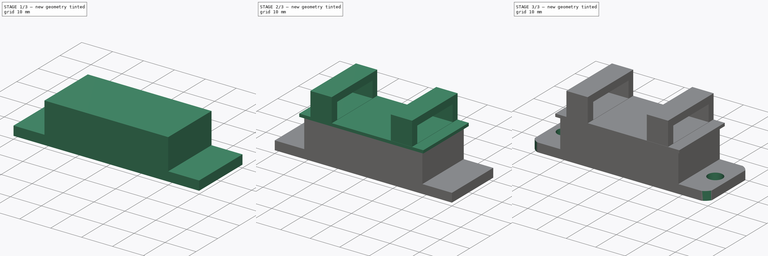
[diagram: build sequence overview — one tinted view per stage of 3, left to right]
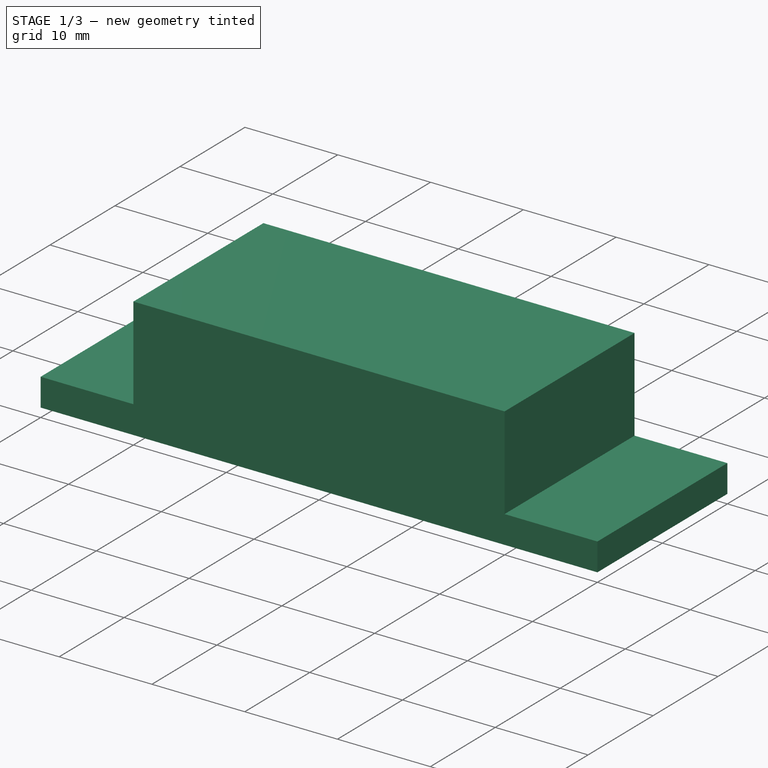
[diagram: stage 1 of 3 — iso view after this stage's code; geometry added in this stage tinted green]
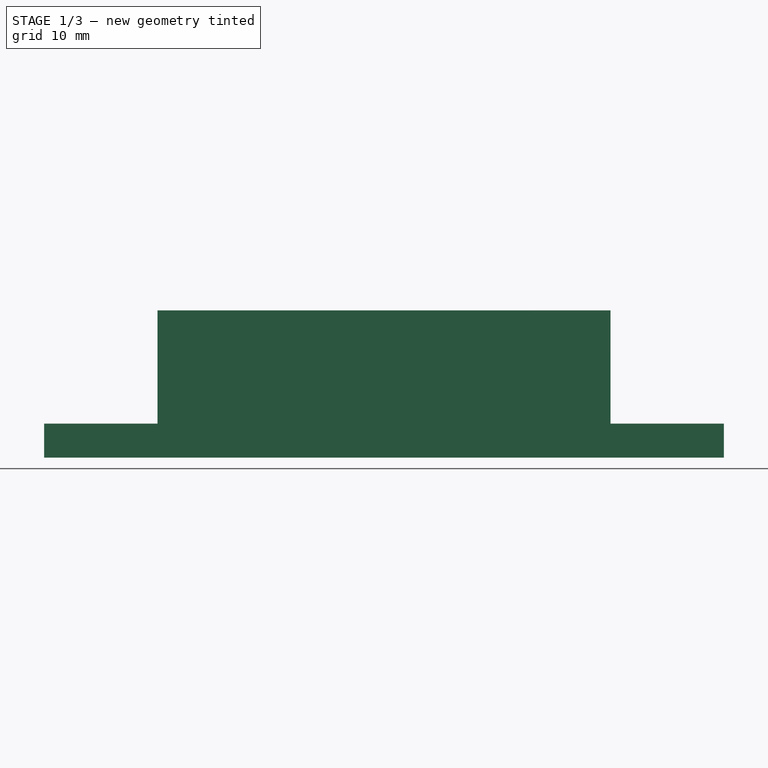
[diagram: stage 1 of 3 — front view after this stage's code; geometry added in this stage tinted green]
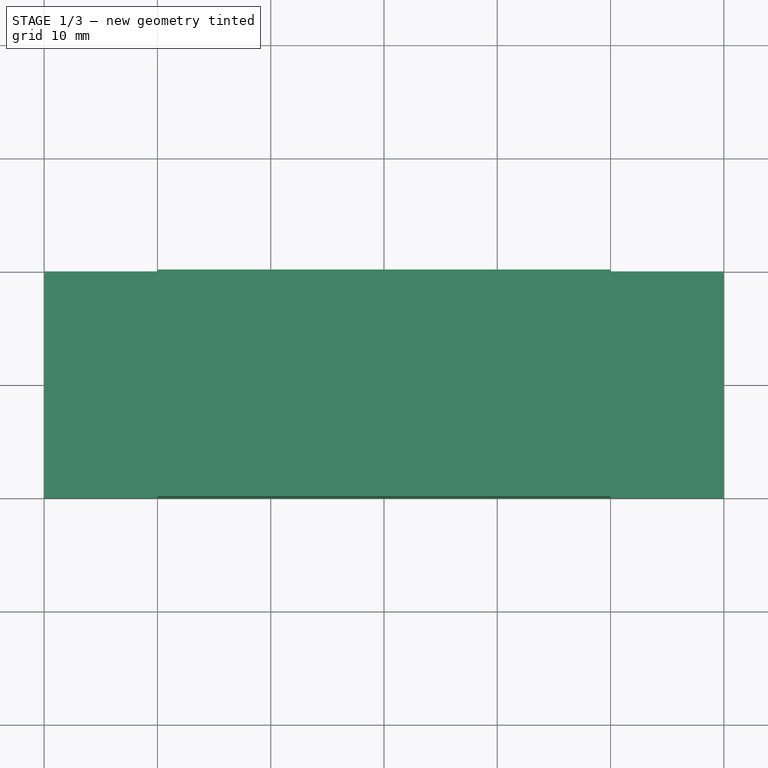
[diagram: stage 1 of 3 — top view after this stage's code; geometry added in this stage tinted green]
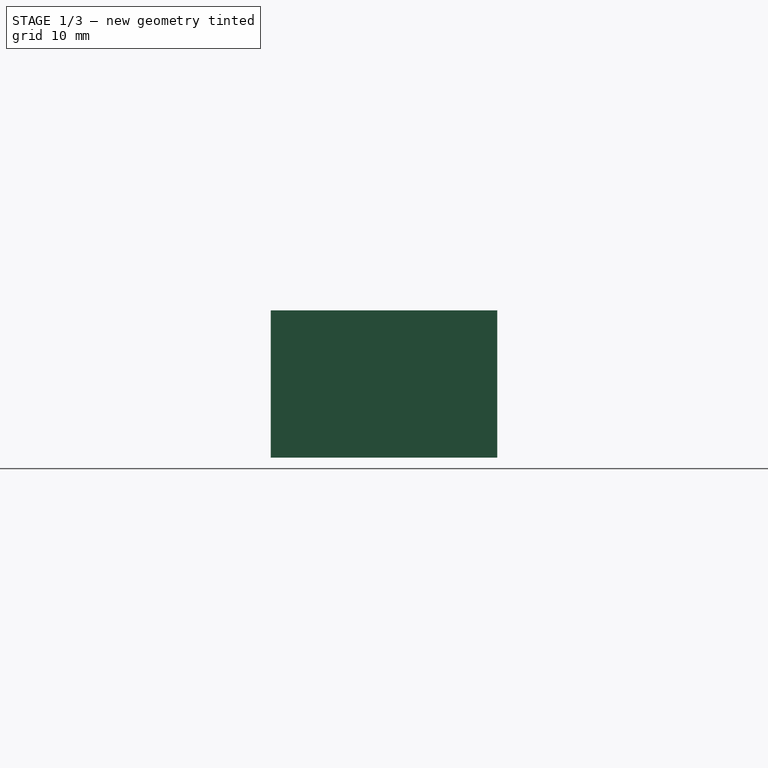
[diagram: stage 1 of 3 — right view after this stage's code; geometry added in this stage tinted green]
FCSTD DOCUMENT  (FreeCAD 1.0R39109 (Git))
Label: Aplique
License: All rights reserved
LicenseURL: https://en.wikipedia.org/wiki/All_rights_reserved
objects: TechDraw::DrawViewDimension×21, Sketcher::SketchObject×10, PartDesign::Pad×4, TechDraw::DrawProjGroupItem×4, PartDesign::Pocket×3, TechDraw::DrawViewImage×2, PartDesign::Body×1, TechDraw::DrawSVGTemplate×1, TechDraw::DrawPage×1
note: 72 computed .brp shape members not serialized (recipe doc carries the construction recipe); baked Part::Feature solids carry a one-line shape summary decoded from their .brp

FEATURE [Sketcher::SketchObject] Sketch
  ArcFitTolerance = 1e-06
  AttachmentSupport = -> [XY_Plane]
  FullyConstrained = true
  MakeInternals = false
  MapMode = 5
  sketch-geometry (5):
    g0: LineSegment StartX=-30 StartY=-10 StartZ=0 EndX=30 EndY=-10 EndZ=0
    g1: LineSegment StartX=30 StartY=-10 StartZ=0 EndX=30 EndY=10 EndZ=0
    g2: LineSegment StartX=30 StartY=10 StartZ=0 EndX=-30 EndY=10 EndZ=0
    g3: LineSegment StartX=-30 StartY=10 StartZ=0 EndX=-30 EndY=-10 EndZ=0
    g4: GeomPoint [constr] X=0 Y=0 Z=0
  constraints (12):
    c: Coincident(g0,g1)
    c: Coincident(g1,g2)
    c: Coincident(g2,g3)
    c: Coincident(g3,g0)
    c: Horizontal(g0)
    c: Horizontal(g2)
    c: Vertical(g1)
    c: Vertical(g3)
    c: Symmetric(g2,g0,g4)
    c: Distance(g1,g3) = 60
    c: Distance(g0,g2) = 20
    c: Coincident(g4,g-1)
FEATURE [PartDesign::Pad] Pad
  Direction = (0,0,1)
  Length = 3
  Length2 = 10
  Profile = -> Sketch
  ReferenceAxis = -> Sketch [N_Axis]
  Refine = true
  Suppressed = false
  Type = 0
FEATURE [Sketcher::SketchObject] Sketch001
  ArcFitTolerance = 1e-06
  AttachmentSupport = -> [Pad]
  FullyConstrained = true
  MakeInternals = false
  MapMode = 5
  Placement = pos=(0,0,3) rot=(0,0,1;0rad)
  sketch-geometry (5):
    g0: LineSegment StartX=-20 StartY=-10 StartZ=0 EndX=20 EndY=-10 EndZ=0
    g1: LineSegment StartX=20 StartY=-10 StartZ=0 EndX=20 EndY=10 EndZ=0
    g2: LineSegment StartX=20 StartY=10 StartZ=0 EndX=-20 EndY=10 EndZ=0
    g3: LineSegment StartX=-20 StartY=10 StartZ=0 EndX=-20 EndY=-10 EndZ=0
    g4: GeomPoint [constr] X=0 Y=0 Z=0
  constraints (12):
    c: Coincident(g0,g1)
    c: Coincident(g1,g2)
    c: Coincident(g2,g3)
    c: Coincident(g3,g0)
    c: Horizontal(g0)
    c: Horizontal(g2)
    c: Vertical(g1)
    c: Vertical(g3)
    c: Symmetric(g2,g0,g4)
    c: Distance(g1,g3) = 40
    c: Distance(g0,g2) = 20
    c: Coincident(g4,g-1)
FEATURE [PartDesign::Pad] Pad001
  BaseFeature = -> Pad
  Direction = (0,0,1)
  Length = 10
  Length2 = 10
  Profile = -> Sketch001
  ReferenceAxis = -> Sketch001 [N_Axis]
  Refine = true
  Suppressed = false
  Type = 0
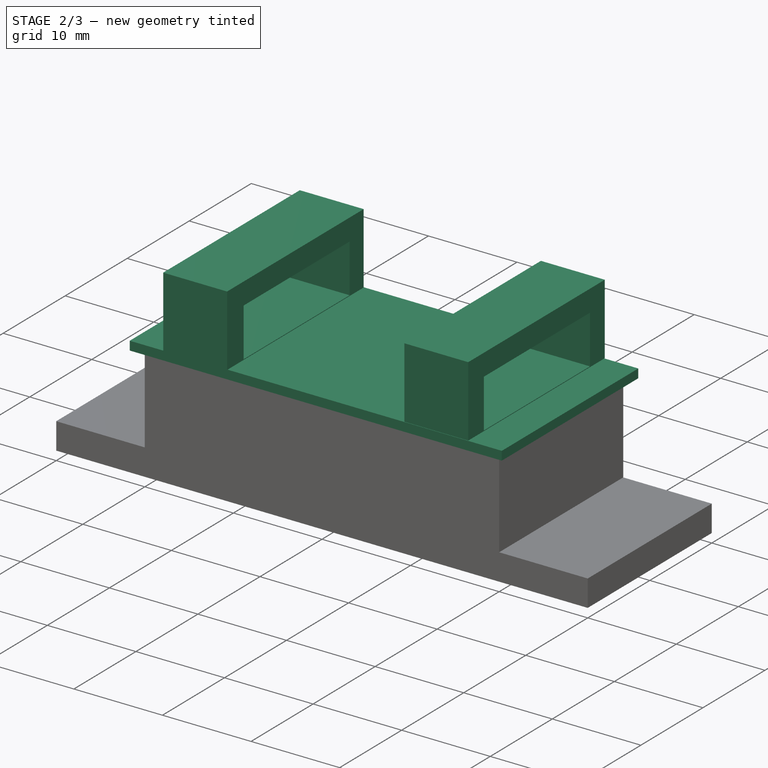
[diagram: stage 2 of 3 — iso view after this stage's code; geometry added in this stage tinted green]
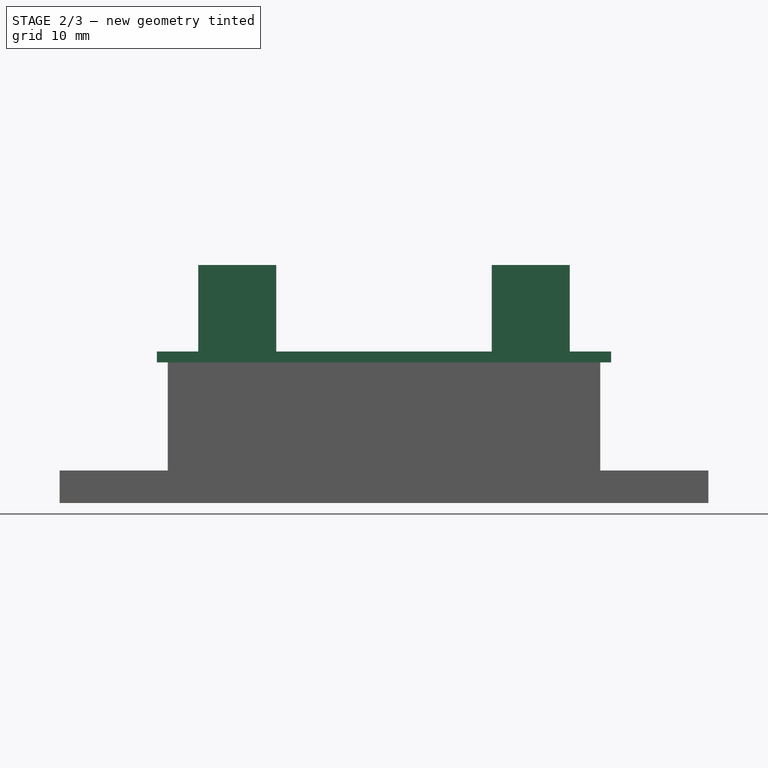
[diagram: stage 2 of 3 — front view after this stage's code; geometry added in this stage tinted green]
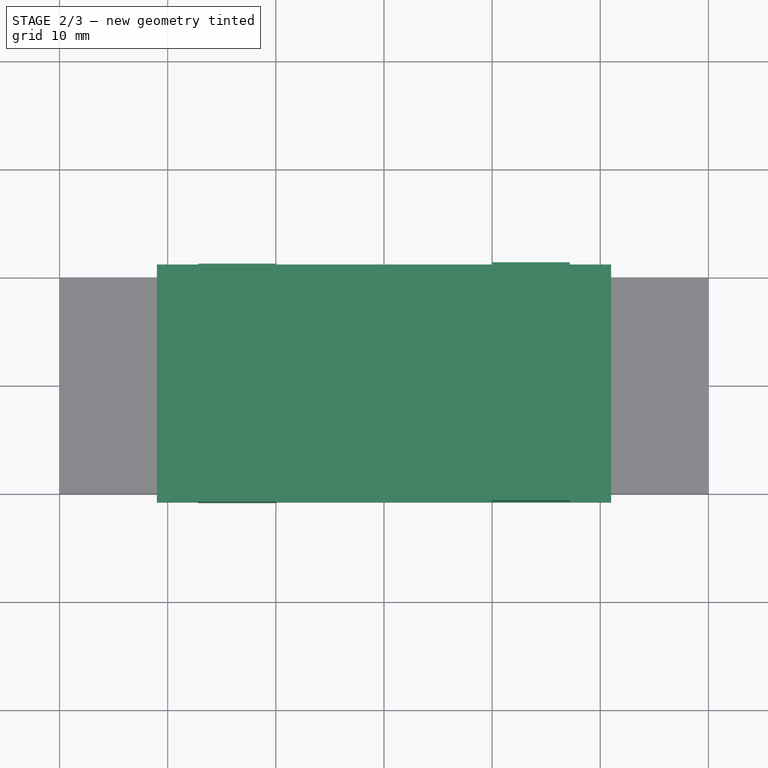
[diagram: stage 2 of 3 — top view after this stage's code; geometry added in this stage tinted green]
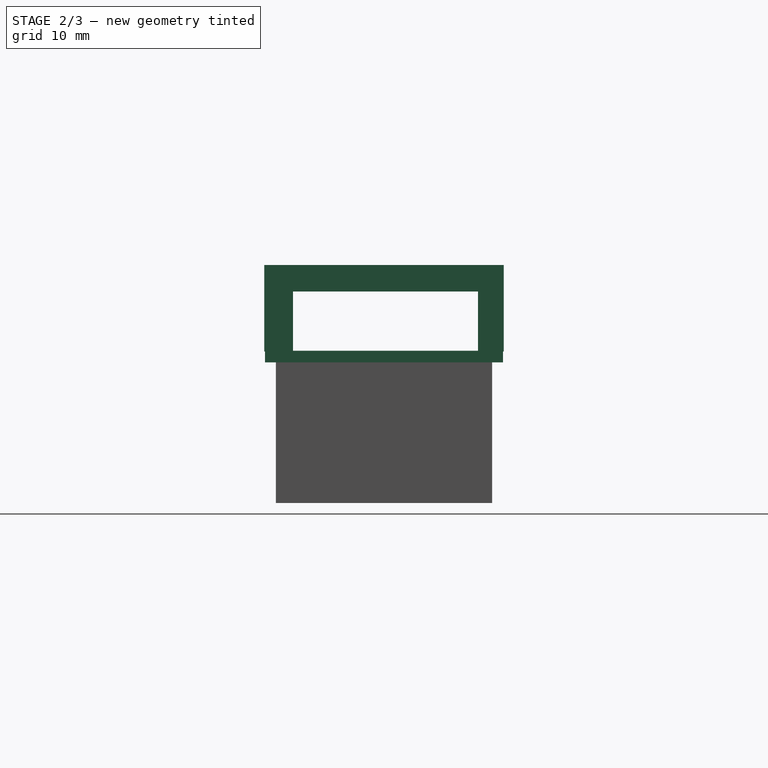
[diagram: stage 2 of 3 — right view after this stage's code; geometry added in this stage tinted green]
FEATURE [Sketcher::SketchObject] Sketch002
  ArcFitTolerance = 1e-06
  FullyConstrained = true
  MakeInternals = false
  MapMode = 5
  Placement = pos=(0,0,13) rot=(0,0,1;0rad)
  sketch-geometry (5):
    g0: LineSegment StartX=-21 StartY=-11 StartZ=0 EndX=21 EndY=-11 EndZ=0
    g1: LineSegment StartX=21 StartY=-11 StartZ=0 EndX=21 EndY=11 EndZ=0
    g2: LineSegment StartX=21 StartY=11 StartZ=0 EndX=-21 EndY=11 EndZ=0
    g3: LineSegment StartX=-21 StartY=11 StartZ=0 EndX=-21 EndY=-11 EndZ=0
    g4: GeomPoint [constr] X=0 Y=0 Z=0
  constraints (12):
    c: Coincident(g0,g1)
    c: Coincident(g1,g2)
    c: Coincident(g2,g3)
    c: Coincident(g3,g0)
    c: Horizontal(g0)
    c: Horizontal(g2)
    c: Vertical(g1)
    c: Vertical(g3)
    c: Symmetric(g2,g0,g4)
    c: Distance(g1,g3) = 42
    c: Distance(g0,g2) = 22
    c: Coincident(g4,g-1)
FEATURE [PartDesign::Pad] Pad002
  BaseFeature = -> Pad001
  Direction = (0,0,1)
  Length = 1
  Length2 = 10
  Profile = -> Sketch002
  ReferenceAxis = -> Sketch002 [N_Axis]
  Refine = true
  Suppressed = false
  Type = 0
FEATURE [Sketcher::SketchObject] Sketch003
  ArcFitTolerance = 1e-06
  AttachmentSupport = -> [Pad002]
  FullyConstrained = false
  MakeInternals = false
  MapMode = 5
  Placement = pos=(0,0,14) rot=(0,0,1;0rad)
  sketch-geometry (8):
    g0: LineSegment StartX=-17.1715 StartY=10.9461 StartZ=0 EndX=-17.1715 EndY=-11.0729 EndZ=0
    g1: LineSegment StartX=-17.1715 StartY=-11.0729 StartZ=0 EndX=-9.96102 EndY=-11.0729 EndZ=0
    g2: LineSegment StartX=-9.96102 StartY=-11.0729 StartZ=0 EndX=-9.96102 EndY=10.9461 EndZ=0
    g3: LineSegment StartX=-9.96102 StartY=10.9461 StartZ=0 EndX=-17.1715 EndY=10.9461 EndZ=0
    g4: LineSegment StartX=17.1715 StartY=-10.9461 StartZ=0 EndX=17.1715 EndY=11.0729 EndZ=0
    g5: LineSegment StartX=17.1715 StartY=11.0729 StartZ=0 EndX=9.96102 EndY=11.0729 EndZ=0
    g6: LineSegment StartX=9.96102 StartY=11.0729 StartZ=0 EndX=9.96102 EndY=-10.9461 EndZ=0
    g7: LineSegment StartX=9.96102 StartY=-10.9461 StartZ=0 EndX=17.1715 EndY=-10.9461 EndZ=0
  constraints (16):
    c: Coincident(g0,g1)
    c: Coincident(g1,g2)
    c: Coincident(g2,g3)
    c: Coincident(g3,g0)
    c: Vertical(g0)
    c: Vertical(g2)
    c: Horizontal(g1)
    c: Horizontal(g3)
    c: Coincident(g4,g5)
    c: Coincident(g5,g6)
    c: Coincident(g6,g7)
    c: Coincident(g7,g4)
    c: Vertical(g4)
    c: Vertical(g6)
    c: Horizontal(g5)
    c: Horizontal(g7)
FEATURE [PartDesign::Pad] Pad003
  BaseFeature = -> Pad002
  Direction = (0,0,1)
  Length = 8
  Length2 = 10
  Profile = -> Sketch003
  ReferenceAxis = -> Sketch003 [N_Axis]
  Refine = true
  Suppressed = false
  Type = 0
FEATURE [Sketcher::SketchObject] Sketch007
  ArcFitTolerance = 1e-06
  AttachmentSupport = -> [Pad]
  FullyConstrained = false
  MakeInternals = false
  MapMode = 5
  Placement = pos=(0,0,3) rot=(0,0,1;0rad)
  sketch-geometry (12):
    g0: ArcOfCircle CenterX=-14.0713 CenterY=3.84792 CenterZ=0 NormalX=0 NormalY=0 NormalZ=1 AngleXU=0 Radius=6.36689 StartAngle=1.69692 EndAngle=2.85512
    g1: LineSegment StartX=-20.1787 StartY=5.64699 StartZ=0 EndX=-20.1787 EndY=10.1642 EndZ=0
    g2: LineSegment StartX=-14.8721 StartY=10.1642 StartZ=0 EndX=-20.1787 EndY=10.1642 EndZ=0
    g3: ArcOfCircle CenterX=-13.9298 CenterY=-4.25832 CenterZ=0 NormalX=0 NormalY=0 NormalZ=1 AngleXU=0 Radius=6.36689 StartAngle=3.26771 EndAngle=4.42592
    g4: LineSegment StartX=-15.7289 StartY=-10.3657 StartZ=0 EndX=-20.2461 EndY=-10.3657 EndZ=0
    g5: LineSegment StartX=-20.2461 StartY=-5.05918 StartZ=0 EndX=-20.2461 EndY=-10.3657 EndZ=0
    g6: ArcOfCircle CenterX=14.0994 CenterY=-3.88096 CenterZ=0 NormalX=0 NormalY=0 NormalZ=1 AngleXU=0 Radius=6.36689 StartAngle=4.83851 EndAngle=5.99672
    g7: LineSegment StartX=20.2068 StartY=-5.68003 StartZ=0 EndX=20.2068 EndY=-10.1973 EndZ=0
    g8: LineSegment StartX=14.9003 StartY=-10.1973 StartZ=0 EndX=20.2068 EndY=-10.1973 EndZ=0
    g9: ArcOfCircle CenterX=13.958 CenterY=4.22529 CenterZ=0 NormalX=0 NormalY=0 NormalZ=1 AngleXU=0 Radius=6.36689 StartAngle=0.126119 EndAngle=1.28433
    g10: LineSegment StartX=15.757 StartY=10.3327 StartZ=0 EndX=20.2743 EndY=10.3327 EndZ=0
    g11: LineSegment StartX=20.2743 StartY=5.02615 StartZ=0 EndX=20.2743 EndY=10.3327 EndZ=0
  constraints (14):
    c: Coincident(g1,g0)
    c: Vertical(g1)
    c: Coincident(g2,g0)
    c: Coincident(g2,g1)
    c: Horizontal(g2)
    c: Coincident(g4,g3)
    c: Coincident(g5,g3)
    c: Coincident(g5,g4)
    c: Coincident(g7,g6)
    c: Coincident(g8,g6)
    c: Coincident(g8,g7)
    c: Coincident(g10,g9)
    c: Coincident(g11,g9)
    c: Coincident(g11,g10)
FEATURE [Sketcher::SketchObject] Sketch008
  ArcFitTolerance = 1e-06
  FullyConstrained = false
  MakeInternals = false
  MapMode = 5
  Placement = pos=(0,0,14) rot=(0,0,1;0rad)
  sketch-geometry (12):
    g0: ArcOfCircle CenterX=-8.17378 CenterY=6.30791 CenterZ=0 NormalX=0 NormalY=0 NormalZ=1 AngleXU=0 Radius=6.08735 StartAngle=2.13955 EndAngle=2.82268
    g1: LineSegment StartX=-13.9542 StartY=8.21651 StartZ=0 EndX=-13.9542 EndY=11.4369 EndZ=0
    g2: LineSegment StartX=-13.9542 StartY=11.4369 StartZ=0 EndX=-11.4523 EndY=11.4369 EndZ=0
    g3: ArcOfCircle CenterX=-10.2497 CenterY=-7.82503 CenterZ=0 NormalX=0 NormalY=0 NormalZ=1 AngleXU=0 Radius=3.75185 StartAngle=3.17526 EndAngle=4.52378
    g4: LineSegment StartX=-13.9994 StartY=-7.95133 StartZ=0 EndX=-13.9994 EndY=-11.5217 EndZ=0
    g5: LineSegment StartX=-10.9531 StartY=-11.5103 StartZ=0 EndX=-13.9994 EndY=-11.5217 EndZ=0
    g6: ArcOfCircle CenterX=7.91702 CenterY=-6.15729 CenterZ=0 NormalX=0 NormalY=0 NormalZ=1 AngleXU=0 Radius=6.03061 StartAngle=5.2981 EndAngle=5.93319
    g7: LineSegment StartX=13.582 StartY=-8.22512 StartZ=0 EndX=13.808 EndY=-11.2079 EndZ=0
    g8: LineSegment StartX=13.808 StartY=-11.2079 StartZ=0 EndX=11.2507 EndY=-11.1827 EndZ=0
    g9: ArcOfCircle CenterX=10.5204 CenterY=7.82498 CenterZ=0 NormalX=0 NormalY=0 NormalZ=1 AngleXU=0 Radius=3.45127 StartAngle=0.0965353 EndAngle=1.45604
    g10: LineSegment StartX=13.9556 StartY=8.15763 StartZ=0 EndX=13.9758 EndY=11.3466 EndZ=0
    g11: LineSegment StartX=10.9156 StartY=11.2535 StartZ=0 EndX=13.9758 EndY=11.3466 EndZ=0
  constraints (14):
    c: Coincident(g1,g0)
    c: Vertical(g1)
    c: Coincident(g2,g1)
    c: Coincident(g2,g0)
    c: Horizontal(g2)
    c: Coincident(g4,g3)
    c: Coincident(g5,g3)
    c: Coincident(g5,g4)
    c: Coincident(g7,g6)
    c: Coincident(g8,g7)
    c: Coincident(g8,g6)
    c: Coincident(g10,g9)
    c: Coincident(g11,g9)
    c: Coincident(g11,g10)
FEATURE [Sketcher::SketchObject] Sketch009
  ArcFitTolerance = 1e-06
  FullyConstrained = false
  MakeInternals = false
  MapMode = 5
  Placement = pos=(0,0,3) rot=(0,0,1;0rad)
  sketch-geometry (2):
    g0: Circle CenterX=-15.9933 CenterY=0 CenterZ=0 NormalX=0 NormalY=0 NormalZ=1 AngleXU=0 Radius=2.5
    g1: Circle CenterX=16.1257 CenterY=0 CenterZ=0 NormalX=0 NormalY=0 NormalZ=1 AngleXU=0 Radius=2.5
  constraints (4):
    c: Diameter(g0) = 5
    c: PointOnObject(g0,g-1)
    c: Diameter(g1) = 5
    c: PointOnObject(g1,g-1)
FEATURE [Sketcher::SketchObject] Sketch010
  ArcFitTolerance = 1e-06
  AttachmentSupport = -> [Pad003]
  FullyConstrained = false
  MakeInternals = false
  MapMode = 5
  Placement = pos=(-9.96102,0,0) rot=(0.57735,0.57735,0.57735;2.0944rad)
  sketch-geometry (4):
    g0: LineSegment StartX=-8.41411 StartY=19.554 StartZ=0 EndX=-8.41411 EndY=14.0714 EndZ=0
    g1: LineSegment StartX=-8.41411 StartY=14.0714 StartZ=0 EndX=8.68998 EndY=14.0714 EndZ=0
    g2: LineSegment StartX=8.68998 StartY=14.0714 StartZ=0 EndX=8.68998 EndY=19.554 EndZ=0
    g3: LineSegment StartX=8.68998 StartY=19.554 StartZ=0 EndX=-8.41411 EndY=19.554 EndZ=0
  constraints (8):
    c: Coincident(g0,g1)
    c: Coincident(g1,g2)
    c: Coincident(g2,g3)
    c: Coincident(g3,g0)
    c: Vertical(g0)
    c: Vertical(g2)
    c: Horizontal(g1)
    c: Horizontal(g3)
FEATURE [PartDesign::Pocket] Pocket
  BaseFeature = -> Pad003
  Direction = (-1,0,0)
  Length = 80
  Length2 = 5
  Midplane = true
  Profile = -> Sketch010
  ReferenceAxis = -> Sketch010 [N_Axis]
  Refine = true
  Suppressed = false
  Type = 0
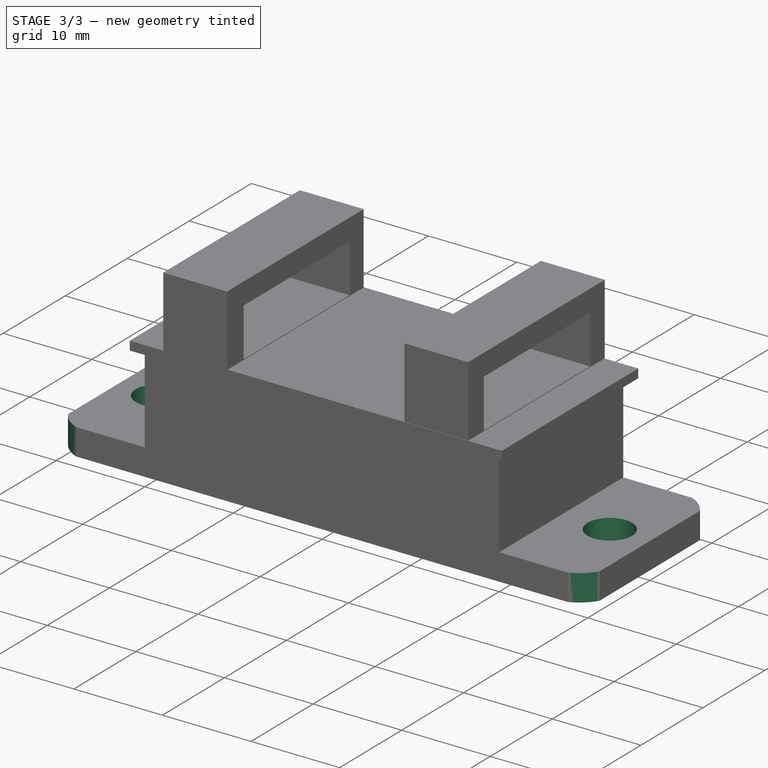
[diagram: stage 3 of 3 — iso view after this stage's code; geometry added in this stage tinted green]
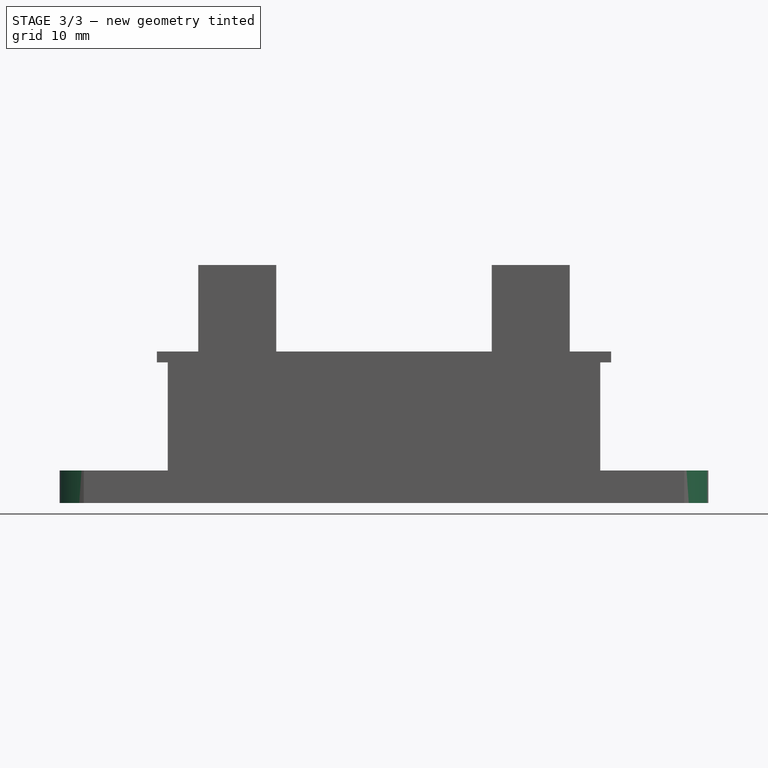
[diagram: stage 3 of 3 — front view after this stage's code; geometry added in this stage tinted green]
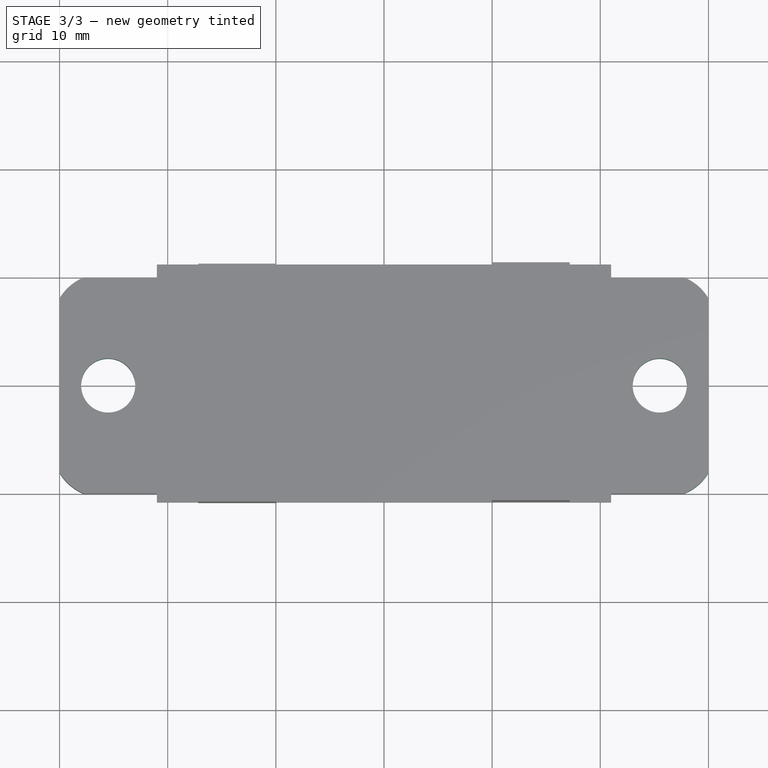
[diagram: stage 3 of 3 — top view after this stage's code; geometry added in this stage tinted green]
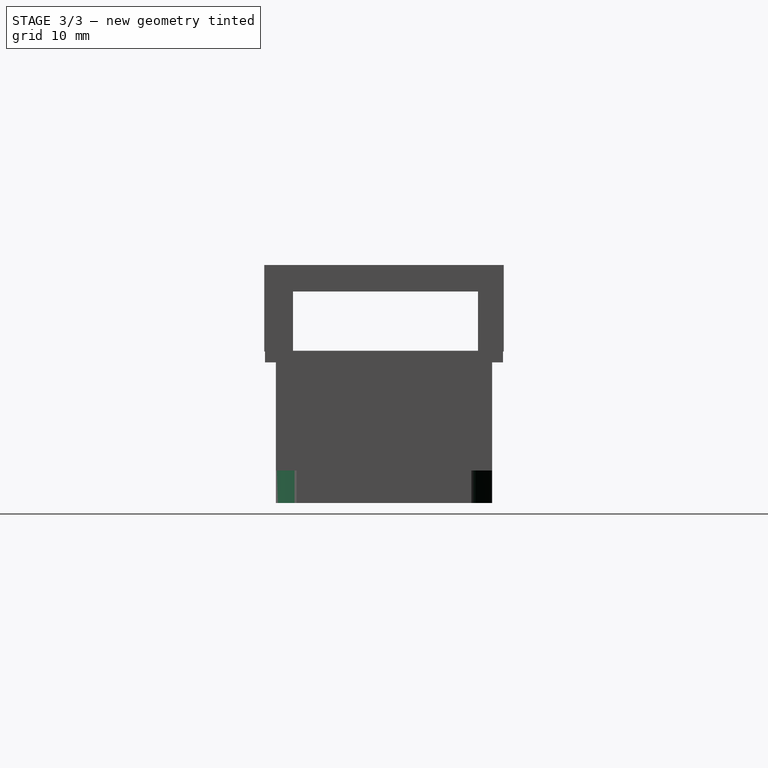
[diagram: stage 3 of 3 — right view after this stage's code; geometry added in this stage tinted green]
FEATURE [Sketcher::SketchObject] Sketch011
  ArcFitTolerance = 1e-06
  AttachmentSupport = -> [Pocket]
  FullyConstrained = false
  MakeInternals = false
  MapMode = 5
  Placement = pos=(0,0,3) rot=(0,0,1;0rad)
  sketch-geometry (12):
    g0: ArcOfCircle CenterX=-25.9526 CenterY=5.63528 CenterZ=0 NormalX=0 NormalY=0 NormalZ=1 AngleXU=0 Radius=4.72615 StartAngle=1.66862 EndAngle=3.05943
    g1: LineSegment StartX=-30.6628 StartY=6.02314 StartZ=0 EndX=-30.6628 EndY=10.2989 EndZ=0
    g2: LineSegment StartX=-30.6628 StartY=10.2989 StartZ=0 EndX=-26.4142 EndY=10.3388 EndZ=0
    g3: ArcOfCircle CenterX=-25.9526 CenterY=-5.63528 CenterZ=0 NormalX=0 NormalY=0 NormalZ=1 AngleXU=0 Radius=4.72615 StartAngle=3.22375 EndAngle=4.61457
    g4: LineSegment StartX=-30.6628 StartY=-6.02314 StartZ=0 EndX=-30.6628 EndY=-10.2989 EndZ=0
    g5: LineSegment StartX=-30.6628 StartY=-10.2989 StartZ=0 EndX=-26.4142 EndY=-10.3388 EndZ=0
    g6: ArcOfCircle CenterX=25.9526 CenterY=5.63528 CenterZ=0 NormalX=0 NormalY=0 NormalZ=1 AngleXU=0 Radius=4.72615 StartAngle=0.0821599 EndAngle=1.47297
    g7: LineSegment StartX=30.6628 StartY=6.02314 StartZ=0 EndX=30.6628 EndY=10.2989 EndZ=0
    g8: LineSegment StartX=30.6628 StartY=10.2989 StartZ=0 EndX=26.4142 EndY=10.3388 EndZ=0
    g9: ArcOfCircle CenterX=25.9526 CenterY=-5.63528 CenterZ=0 NormalX=0 NormalY=0 NormalZ=1 AngleXU=0 Radius=4.72615 StartAngle=4.81021 EndAngle=6.20103
    g10: LineSegment StartX=30.6628 StartY=-6.02314 StartZ=0 EndX=30.6628 EndY=-10.2989 EndZ=0
    g11: LineSegment StartX=30.6628 StartY=-10.2989 StartZ=0 EndX=26.4142 EndY=-10.3388 EndZ=0
  constraints (12):
    c: Coincident(g1,g0)
    c: Vertical(g1)
    c: Coincident(g2,g0)
    c: Coincident(g4,g3)
    c: Vertical(g4)
    c: Coincident(g5,g3)
    c: Coincident(g7,g6)
    c: Vertical(g7)
    c: Coincident(g8,g6)
    c: Coincident(g10,g9)
    c: Vertical(g10)
    c: Coincident(g11,g9)
FEATURE [PartDesign::Pocket] Pocket001
  BaseFeature = -> Pocket
  Direction = (0,0,-1)
  Length = 5
  Length2 = 5
  Profile = -> Sketch011
  ReferenceAxis = -> Sketch011 [N_Axis]
  Refine = true
  Suppressed = false
  Type = 0
FEATURE [Sketcher::SketchObject] Sketch012
  ArcFitTolerance = 1e-06
  AttachmentSupport = -> [Pocket001]
  FullyConstrained = false
  MakeInternals = false
  MapMode = 5
  Placement = pos=(0,0,3) rot=(0,0,1;0rad)
  sketch-geometry (2):
    g0: Circle CenterX=-25.5037 CenterY=0 CenterZ=0 NormalX=0 NormalY=0 NormalZ=1 AngleXU=0 Radius=2.5
    g1: Circle CenterX=25.4976 CenterY=0 CenterZ=0 NormalX=0 NormalY=0 NormalZ=1 AngleXU=0 Radius=2.5
  constraints (4):
    c: Diameter(g0) = 5
    c: PointOnObject(g0,g-1)
    c: Diameter(g1) = 5
    c: PointOnObject(g1,g-1)
FEATURE [PartDesign::Pocket] Pocket002
  BaseFeature = -> Pocket001
  Direction = (0,0,-1)
  Length = 5
  Length2 = 5
  Profile = -> Sketch012
  ReferenceAxis = -> Sketch012 [N_Axis]
  Refine = true
  Suppressed = false
  Type = 0
FEATURE [PartDesign::Body] Body
  AllowCompound = false
  Group = -> [Sketch,Pad,Sketch001,Pad001,Sketch002,Pad002,Sketch003,Pad003,Sketch007,Sketch008,Sketch009,Sketch010,Pocket,Sketch011,Pocket001,Sketch012,Pocket002]
  Origin = -> Origin
  Tip = -> Pocket002
FEATURE [TechDraw::DrawSVGTemplate] Template  label="Plantilla"
  EditableTexts = creator=Paglia Tiziano Nehuén; date_of_issue=20/10/2025; document_type=Plano diseño; general_tolerances=ISO 2768-m; identification_number=01; language_code=ES; part_material=Stainless steel Mat.No. 1.4301; revision_index=AAA; sheet_number=1 / 1; sheet_scale=2 : 1; title=Aplique
  Height = 297
  Orientation = 1
  Template = C:/Program Files/FreeCAD 1.0/data/Mod/TechDraw/Templates/A3_Landscape_ISO5457_minimal.svg
  Width = 420
FEATURE [TechDraw::DrawProjGroupItem] View
  CoarseView = false
  Direction = (0,0,1)
  Focus = 100
  HardHidden = false
  IsoCount = 0
  IsoHidden = false
  IsoVisible = false
  LockPosition = false
  Perspective = false
  Rotation = 0
  RotationVector = (1,0,0)
  Scale = 2
  ScaleType = 2
  ScrubCount = 1
  SeamHidden = false
  SeamVisible = false
  SmoothHidden = false
  SmoothVisible = true
  Source = -> [Body]
  Type = 0
  X = 315.048
  XDirection = (1,0,0)
  Y = 259.118
FEATURE [TechDraw::DrawViewDimension] Dimension  label="Cota"
  AngleOverride = false
  Arbitrary = false
  ArbitraryTolerances = false
  BoxCorners = (2) [(-60,-22.1457,0),(60,22.1457,0)]
  EqualTolerance = true
  ExtensionAngle = 0
  FormatSpec = %.2w
  FormatSpecOverTolerance = %+.2w
  FormatSpecUnderTolerance = %+.2w
  Inverted = false
  LineAngle = 0
  LockPosition = false
  MeasureType = 1
  OverTolerance = 0
  References2D = -> [View]
  Rotation = 0
  ScaleType = 0
  TheoreticalExact = false
  Type = 1
  UnderTolerance = 0
  X = -48.7653
  Y = -52.4753
FEATURE [TechDraw::DrawViewDimension] Dimension001  label="Cota001"
  AngleOverride = false
  Arbitrary = false
  ArbitraryTolerances = false
  BoxCorners = (2) [(-60,-22.1457,0),(60,22.1457,0)]
  EqualTolerance = true
  ExtensionAngle = 0
  FormatSpec = %.2w
  FormatSpecOverTolerance = %+.2w
  FormatSpecUnderTolerance = %+.2w
  Inverted = false
  LineAngle = 0
  LockPosition = false
  MeasureType = 1
  OverTolerance = 0
  References2D = -> [View]
  Rotation = 0
  ScaleType = 0
  TheoreticalExact = false
  Type = 0
  UnderTolerance = 0
  X = -15.0951
  Y = -52.4753
FEATURE [TechDraw::DrawViewDimension] Dimension002  label="Cota002"
  AngleOverride = false
  Arbitrary = false
  ArbitraryTolerances = false
  BoxCorners = (2) [(-60,-22.1457,0),(60,22.1457,0)]
  EqualTolerance = true
  ExtensionAngle = 0
  FormatSpec = %.2w
  FormatSpecOverTolerance = %+.2w
  FormatSpecUnderTolerance = %+.2w
  Inverted = false
  LineAngle = 0
  LockPosition = false
  MeasureType = 1
  OverTolerance = 0
  References2D = -> [View]
  Rotation = 0
  ScaleType = 0
  TheoreticalExact = false
  Type = 0
  UnderTolerance = 0
  X = 0
  Y = -36.1114
FEATURE [TechDraw::DrawViewDimension] Dimension003  label="Cota003"
  AngleOverride = false
  Arbitrary = false
  ArbitraryTolerances = false
  BoxCorners = (2) [(-60,-22.1457,0),(60,22.1457,0)]
  EqualTolerance = true
  ExtensionAngle = 0
  FormatSpec = %.2w
  FormatSpecOverTolerance = %+.2w
  FormatSpecUnderTolerance = %+.2w
  Inverted = false
  LineAngle = 0
  LockPosition = false
  MeasureType = 1
  OverTolerance = 0
  References2D = -> [View]
  Rotation = 0
  ScaleType = 0
  TheoreticalExact = false
  Type = 1
  UnderTolerance = 0
  X = 27.1326
  Y = -36.1114
FEATURE [TechDraw::DrawViewDimension] Dimension004  label="Cota004"
  AngleOverride = false
  Arbitrary = false
  ArbitraryTolerances = false
  BoxCorners = (2) [(-60,-22.1457,0),(60,22.1457,0)]
  EqualTolerance = true
  ExtensionAngle = 0
  FormatSpec = %.2w
  FormatSpecOverTolerance = %+.2w
  FormatSpecUnderTolerance = %+.2w
  Inverted = false
  LineAngle = 0
  LockPosition = false
  MeasureType = 1
  OverTolerance = 0
  References2D = -> [View]
  Rotation = 0
  ScaleType = 0
  TheoreticalExact = false
  Type = 1
  UnderTolerance = 0
  X = -27.1326
  Y = -36.1114
FEATURE [TechDraw::DrawViewDimension] Dimension005  label="Cota005"
  AngleOverride = false
  Arbitrary = false
  ArbitraryTolerances = false
  BoxCorners = (2) [(-60,-22.1457,0),(60,22.1457,0)]
  EqualTolerance = true
  ExtensionAngle = 0
  FormatSpec = %.2w
  FormatSpecOverTolerance = %+.2w
  FormatSpecUnderTolerance = %+.2w
  Inverted = false
  LineAngle = 0
  LockPosition = false
  MeasureType = 1
  OverTolerance = 0
  References2D = -> [View]
  Rotation = 0
  ScaleType = 0
  TheoreticalExact = false
  Type = 2
  UnderTolerance = 0
  X = -85.4088
  Y = 0
FEATURE [TechDraw::DrawViewDimension] Dimension006  label="Cota006"
  AngleOverride = false
  Arbitrary = false
  ArbitraryTolerances = false
  BoxCorners = (2) [(-60,-22.1457,0),(60,22.1457,0)]
  EqualTolerance = true
  ExtensionAngle = 0
  FormatSpec = %.2w
  FormatSpecOverTolerance = %+.2w
  FormatSpecUnderTolerance = %+.2w
  Inverted = false
  LineAngle = 0
  LockPosition = false
  MeasureType = 1
  OverTolerance = 0
  References2D = -> [View]
  Rotation = 0
  ScaleType = 0
  TheoreticalExact = false
  Type = 0
  UnderTolerance = 0
  X = 85.4739
  Y = 0
FEATURE [TechDraw::DrawViewDimension] Dimension007  label="Cota007"
  AngleOverride = false
  Arbitrary = false
  ArbitraryTolerances = false
  BoxCorners = (2) [(-60,-22.1457,0),(60,22.1457,0)]
  EqualTolerance = true
  ExtensionAngle = 0
  FormatSpec = R%.2w
  FormatSpecOverTolerance = %+.2w
  FormatSpecUnderTolerance = %+.2w
  Inverted = false
  LineAngle = 0
  LockPosition = false
  MeasureType = 1
  OverTolerance = 0
  References2D = -> [View]
  Rotation = 0
  ScaleType = 0
  TheoreticalExact = false
  Type = 4
  UnderTolerance = 0
  X = 70.4108
  Y = 4.51834
FEATURE [TechDraw::DrawProjGroupItem] View001
  CoarseView = false
  Direction = (0,-1,0)
  Focus = 100
  HardHidden = false
  IsoCount = 0
  IsoHidden = false
  IsoVisible = false
  LockPosition = false
  Perspective = false
  Rotation = 0
  RotationVector = (1,0,0)
  Scale = 2
  ScaleType = 2
  ScrubCount = 1
  SeamHidden = false
  SeamVisible = false
  SmoothHidden = false
  SmoothVisible = true
  Source = -> [Body]
  Type = 0
  X = 315.048
  XDirection = (1,0,0)
  Y = 174.673
FEATURE [TechDraw::DrawViewDimension] Dimension008  label="Cota008"
  AngleOverride = false
  Arbitrary = false
  ArbitraryTolerances = false
  BoxCorners = (2) [(-60,-22,-1e-07),(60,22,1e-07)]
  EqualTolerance = true
  ExtensionAngle = 0
  FormatSpec = %.2w
  FormatSpecOverTolerance = %+.2w
  FormatSpecUnderTolerance = %+.2w
  Inverted = false
  LineAngle = 0
  LockPosition = false
  MeasureType = 1
  OverTolerance = 0
  References2D = -> [View001]
  Rotation = 0
  ScaleType = 0
  TheoreticalExact = false
  Type = 1
  UnderTolerance = 0
  X = -7.88506
  Y = -42.4059
FEATURE [TechDraw::DrawViewDimension] Dimension009  label="Cota009"
  AngleOverride = false
  Arbitrary = false
  ArbitraryTolerances = false
  BoxCorners = (2) [(-60,-22,-1e-07),(60,22,1e-07)]
  EqualTolerance = true
  ExtensionAngle = 0
  FormatSpec = %.2w
  FormatSpecOverTolerance = %+.2w
  FormatSpecUnderTolerance = %+.2w
  Inverted = false
  LineAngle = 0
  LockPosition = false
  MeasureType = 1
  OverTolerance = 0
  References2D = -> [View001]
  Rotation = 0
  ScaleType = 0
  TheoreticalExact = false
  Type = 2
  UnderTolerance = 0
  X = 69.373
  Y = -2.27368
FEATURE [TechDraw::DrawViewDimension] Dimension010  label="Cota010"
  AngleOverride = false
  Arbitrary = false
  ArbitraryTolerances = false
  BoxCorners = (2) [(-60,-22,-1e-07),(60,22,1e-07)]
  EqualTolerance = true
  ExtensionAngle = 0
  FormatSpec = %.2w
  FormatSpecOverTolerance = %+.2w
  FormatSpecUnderTolerance = %+.2w
  Inverted = false
  LineAngle = 0
  LockPosition = false
  MeasureType = 1
  OverTolerance = 0
  References2D = -> [View001]
  Rotation = 0
  ScaleType = 0
  TheoreticalExact = false
  Type = 2
  UnderTolerance = 0
  X = 84.5992
  Y = -25.5089
FEATURE [TechDraw::DrawViewDimension] Dimension011  label="Cota011"
  AngleOverride = false
  Arbitrary = false
  ArbitraryTolerances = false
  BoxCorners = (2) [(-60,-22,-1e-07),(60,22,1e-07)]
  EqualTolerance = true
  ExtensionAngle = 0
  FormatSpec = %.2w
  FormatSpecOverTolerance = %+.2w
  FormatSpecUnderTolerance = %+.2w
  Inverted = false
  LineAngle = 0
  LockPosition = false
  MeasureType = 1
  OverTolerance = 0
  References2D = -> [View001]
  Rotation = 0
  ScaleType = 0
  TheoreticalExact = false
  Type = 2
  UnderTolerance = 0
  X = 84.5992
  Y = -6
FEATURE [TechDraw::DrawProjGroupItem] View002
  CoarseView = false
  Direction = (1,-1e-16,0)
  Focus = 100
  HardHidden = false
  IsoCount = 0
  IsoHidden = false
  IsoVisible = false
  LockPosition = false
  Perspective = false
  Rotation = 0
  RotationVector = (1,0,0)
  Scale = 2
  ScaleType = 2
  ScrubCount = 1
  SeamHidden = false
  SeamVisible = false
  SmoothHidden = false
  SmoothVisible = true
  Source = -> [Pocket002]
  Type = 0
  X = 221.659
  XDirection = (1e-16,1,0)
  Y = 161.294
FEATURE [TechDraw::DrawViewDimension] Dimension012  label="Cota012"
  AngleOverride = false
  Arbitrary = false
  ArbitraryTolerances = false
  BoxCorners = (2) [(-22.1457,-22,-1e-07),(22.1457,22,1e-07)]
  EqualTolerance = true
  ExtensionAngle = 0
  FormatSpec = %.2w
  FormatSpecOverTolerance = %+.2w
  FormatSpecUnderTolerance = %+.2w
  Inverted = false
  LineAngle = 0
  LockPosition = false
  MeasureType = 1
  OverTolerance = 0
  References2D = -> [View002]
  Rotation = 0
  ScaleType = 0
  TheoreticalExact = false
  Type = 1
  UnderTolerance = 0
  X = 6.74334
  Y = 43.9454
FEATURE [TechDraw::DrawViewDimension] Dimension013  label="Cota013"
  AngleOverride = false
  Arbitrary = false
  ArbitraryTolerances = false
  BoxCorners = (2) [(-22.1457,-22,-1e-07),(22.1457,22,1e-07)]
  EqualTolerance = true
  ExtensionAngle = 0
  FormatSpec = %.2w
  FormatSpecOverTolerance = %+.2w
  FormatSpecUnderTolerance = %+.2w
  Inverted = false
  LineAngle = 0
  LockPosition = false
  MeasureType = 1
  OverTolerance = 0
  References2D = -> [View002]
  Rotation = 0
  ScaleType = 0
  TheoreticalExact = false
  Type = 1
  UnderTolerance = 0
  X = 0
  Y = -45.0063
FEATURE [TechDraw::DrawViewDimension] Dimension014  label="Cota014"
  AngleOverride = false
  Arbitrary = false
  ArbitraryTolerances = false
  BoxCorners = (2) [(-22.1457,-22,-1e-07),(22.1457,22,1e-07)]
  EqualTolerance = true
  ExtensionAngle = 0
  FormatSpec = %.2w
  FormatSpecOverTolerance = %+.2w
  FormatSpecUnderTolerance = %+.2w
  Inverted = false
  LineAngle = 0
  LockPosition = false
  MeasureType = 1
  OverTolerance = 0
  References2D = -> [View002]
  Rotation = 0
  ScaleType = 0
  TheoreticalExact = false
  Type = 0
  UnderTolerance = 0
  X = 18.5618
  Y = -56.8151
FEATURE [TechDraw::DrawViewDimension] Dimension015  label="Cota015"
  AngleOverride = false
  Arbitrary = false
  ArbitraryTolerances = false
  BoxCorners = (2) [(-22.1457,-22,-1e-07),(22.1457,22,1e-07)]
  EqualTolerance = true
  ExtensionAngle = 0
  FormatSpec = %.2w
  FormatSpecOverTolerance = %+.2w
  FormatSpecUnderTolerance = %+.2w
  Inverted = false
  LineAngle = 0
  LockPosition = false
  MeasureType = 1
  OverTolerance = 0
  References2D = -> [View002]
  Rotation = 0
  ScaleType = 0
  TheoreticalExact = false
  Type = 0
  UnderTolerance = 0
  X = 21.2914
  Y = 33.3918
FEATURE [TechDraw::DrawProjGroupItem] View003
  CoarseView = false
  Direction = (0,0,-1)
  Focus = 100
  HardHidden = false
  IsoCount = 0
  IsoHidden = false
  IsoVisible = false
  LockPosition = false
  Perspective = false
  Rotation = 0
  RotationVector = (1,0,0)
  Scale = 2
  ScaleType = 2
  ScrubCount = 1
  SeamHidden = false
  SeamVisible = false
  SmoothHidden = false
  SmoothVisible = true
  Source = -> [Body]
  Type = 0
  X = 315.048
  XDirection = (1,0,0)
  Y = 94.4263
FEATURE [TechDraw::DrawViewDimension] Dimension016  label="Cota016"
  AngleOverride = false
  Arbitrary = false
  ArbitraryTolerances = false
  BoxCorners = (2) [(-60,-22.1457,0),(60,22.1457,0)]
  EqualTolerance = true
  ExtensionAngle = 0
  FormatSpec = %.2w
  FormatSpecOverTolerance = %+.2w
  FormatSpecUnderTolerance = %+.2w
  Inverted = false
  LineAngle = 0
  LockPosition = false
  MeasureType = 1
  OverTolerance = 0
  References2D = -> [View]
  Rotation = 0
  ScaleType = 0
  TheoreticalExact = false
  Type = 2
  UnderTolerance = 0
  X = -100.736
  Y = 0
FEATURE [TechDraw::DrawViewDimension] Dimension017  label="Cota017"
  AngleOverride = false
  Arbitrary = false
  ArbitraryTolerances = false
  BoxCorners = (2) [(-60,-22.1457,0),(60,22.1457,0)]
  EqualTolerance = true
  ExtensionAngle = 0
  FormatSpec = %.2w
  FormatSpecOverTolerance = %+.2w
  FormatSpecUnderTolerance = %+.2w
  Inverted = false
  LineAngle = 0
  LockPosition = false
  MeasureType = 1
  OverTolerance = 0
  References2D = -> [View003]
  Rotation = 0
  ScaleType = 0
  TheoreticalExact = false
  Type = 0
  UnderTolerance = 0
  X = 69.9645
  Y = -24.4207
FEATURE [TechDraw::DrawViewDimension] Dimension018  label="Cota018"
  AngleOverride = false
  Arbitrary = false
  ArbitraryTolerances = false
  BoxCorners = (2) [(-60,-22.1457,0),(60,22.1457,0)]
  EqualTolerance = true
  ExtensionAngle = 0
  FormatSpec = %.2w
  FormatSpecOverTolerance = %+.2w
  FormatSpecUnderTolerance = %+.2w
  Inverted = false
  LineAngle = 0
  LockPosition = false
  MeasureType = 1
  OverTolerance = 0
  References2D = -> [View003]
  Rotation = 0
  ScaleType = 0
  TheoreticalExact = false
  Type = 0
  UnderTolerance = 0
  X = -6.35247
  Y = 11.6406
FEATURE [TechDraw::DrawViewDimension] Dimension019  label="Cota019"
  AngleOverride = false
  Arbitrary = false
  ArbitraryTolerances = false
  BoxCorners = (2) [(-60,-22.1457,0),(60,22.1457,0)]
  EqualTolerance = true
  ExtensionAngle = 0
  FormatSpec = %.2w
  FormatSpecOverTolerance = %+.2w
  FormatSpecUnderTolerance = %+.2w
  Inverted = false
  LineAngle = 0
  LockPosition = false
  MeasureType = 1
  OverTolerance = 0
  References2D = -> [View003]
  Rotation = 0
  ScaleType = 0
  TheoreticalExact = false
  Type = 0
  UnderTolerance = 0
  X = -38.6321
  Y = 15.5737
FEATURE [TechDraw::DrawViewDimension] Dimension020  label="Cota020"
  AngleOverride = false
  Arbitrary = false
  ArbitraryTolerances = false
  BoxCorners = (2) [(-60,-22.1457,0),(60,22.1457,0)]
  EqualTolerance = true
  ExtensionAngle = 0
  FormatSpec = %.2w
  FormatSpecOverTolerance = %+.2w
  FormatSpecUnderTolerance = %+.2w
  Inverted = false
  LineAngle = 0
  LockPosition = false
  MeasureType = 1
  OverTolerance = 0
  References2D = -> [View003]
  Rotation = 0
  ScaleType = 0
  TheoreticalExact = false
  Type = 0
  UnderTolerance = 0
  X = 42.3009
  Y = 15.5737
FEATURE [TechDraw::DrawViewImage] ActiveView  label="Vista activa"
  Height = 102.4
  ImageFile = <userpath>/AppData/Local/cache/FreeCAD/Cache/FreeCAD_Doc_61cd042a-d1a5-46a5-970a-1c5e9228fb98_78d057_177512/Pag8A14.tmp.png
  LockPosition = false
  Rotation = 0
  Scale = 2
  ScaleType = 2
  Width = 128
  X = 139.033
  Y = 228.503
FEATURE [TechDraw::DrawViewImage] ActiveView001  label="Vista activa001"
  Height = 102.4
  ImageFile = <userpath>/AppData/Local/cache/FreeCAD/Cache/FreeCAD_Doc_61cd042a-d1a5-46a5-970a-1c5e9228fb98_78d057_177512/PagAC0F.tmp.png
  LockPosition = false
  Rotation = 0
  Scale = 2
  ScaleType = 2
  Width = 128
  X = 99.4968
  Y = 83.097
FEATURE [TechDraw::DrawPage] Page  label="Página"
  KeepUpdated = false
  NextBalloonIndex = 1
  ProjectionType = 0
  Template = -> Template
  Views = -> [View,Dimension,Dimension001,Dimension002,Dimension003,Dimension004,Dimension005,Dimension006,Dimension007,View001,Dimension008,Dimension009,Dimension010,Dimension011,View002,Dimension012,Dimension013,Dimension014,Dimension015,View003,Dimension016,Dimension017,Dimension018,Dimension019,Dimension020,ActiveView,ActiveView001]
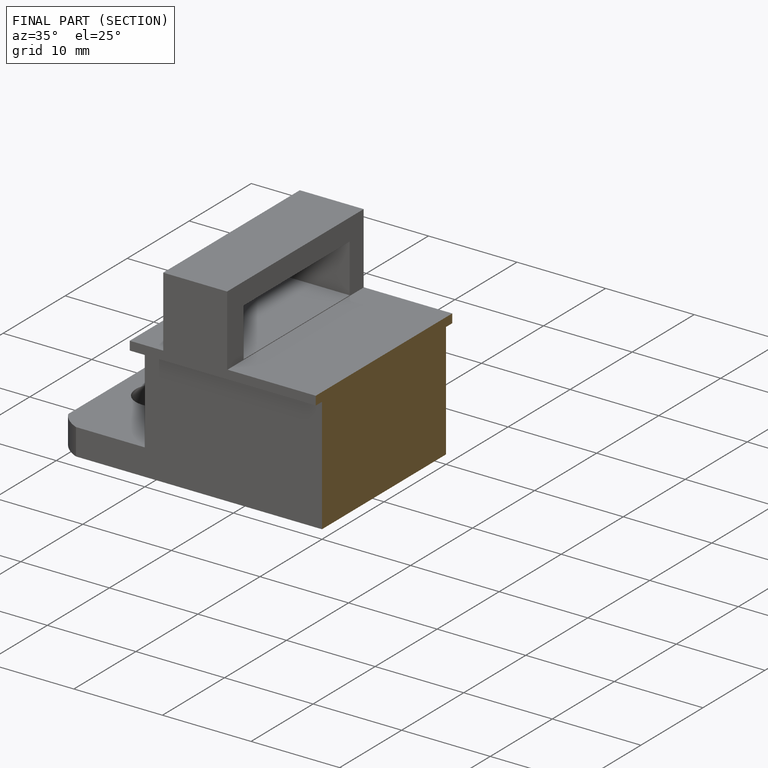
[diagram: finished part — half-section view (interior)]
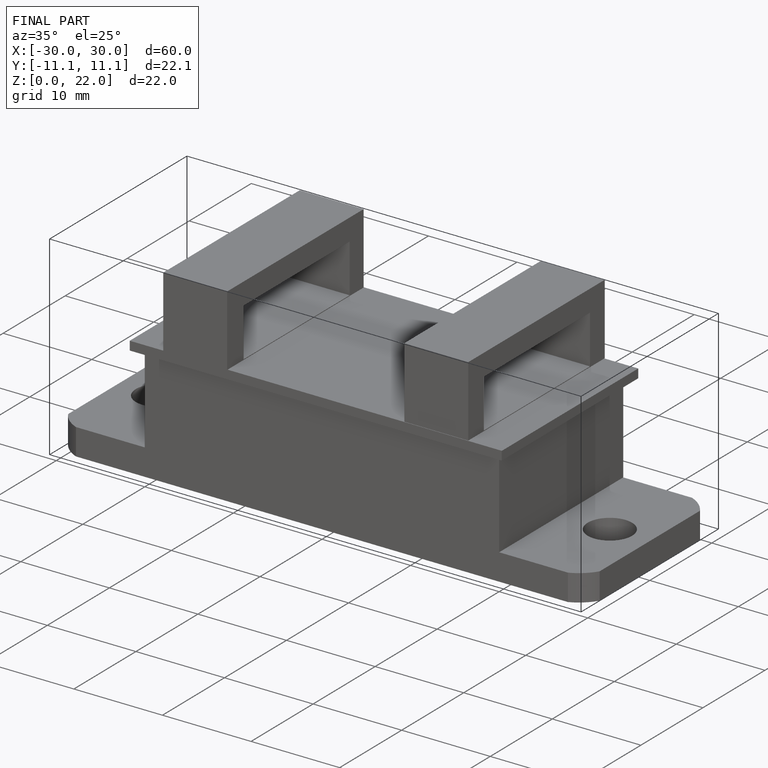
[diagram: finished part — iso view with bounding-box wireframe]
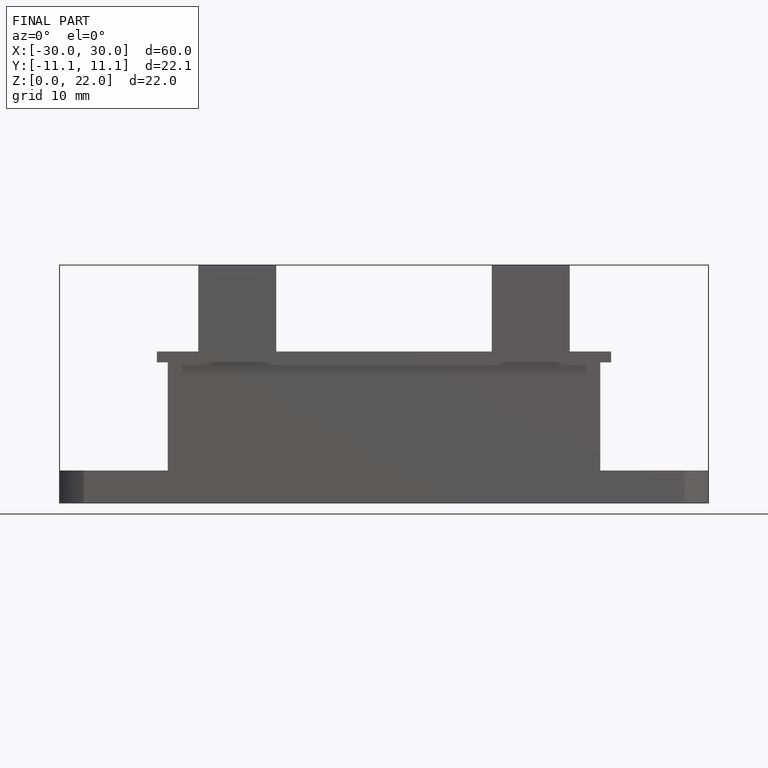
[diagram: finished part — front view with bounding-box wireframe]
